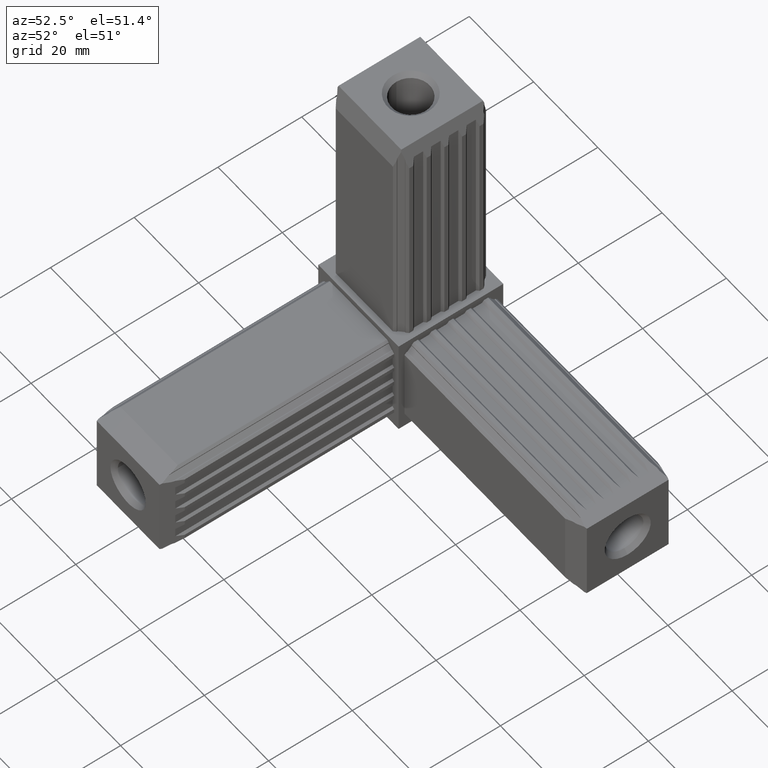
[diagram: clean part render]
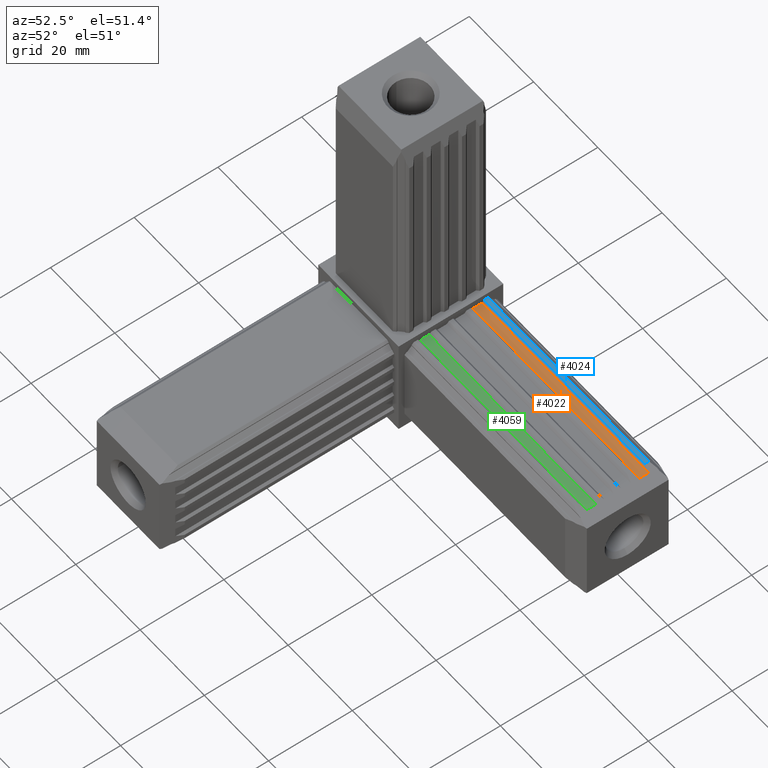
[diagram: same view with three faces highlighted in distinct colors, each labeled with its STEP entity id]
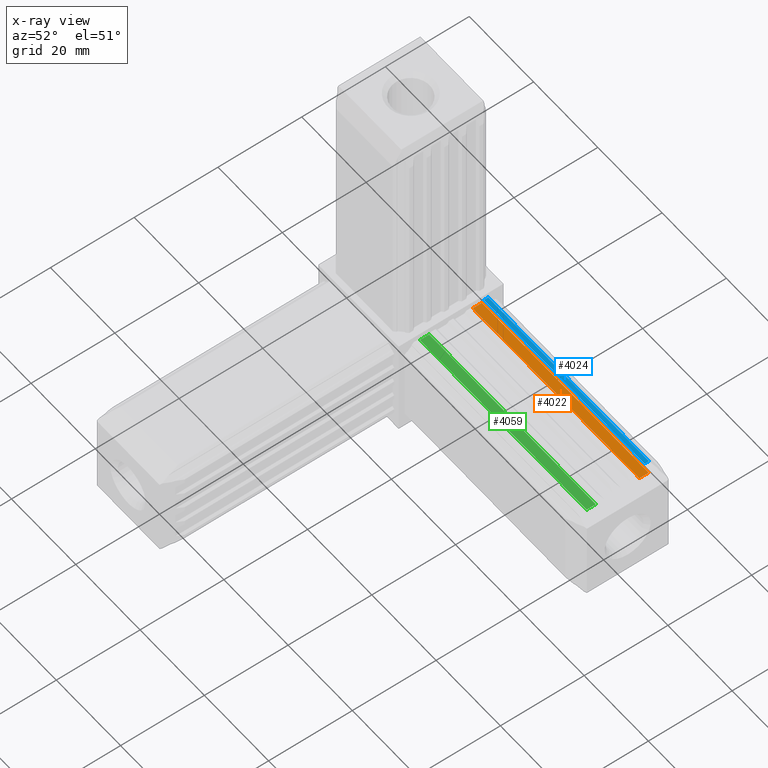
[diagram: x-ray of the same camera — body ghosted, the three highlighted faces saturated]
A machine part, auxiliary view with three faces highlighted in distinct colors.
The next image is the same camera in x-ray (body ghosted, the three faces saturated) — at least one of them is partly hidden behind the body in this view.
Their STEP definitions:

[orange] entity #4022 — the highlighted planar face has unit normal (0, 0, 1).
#103=PLANE('',#4265);
#311=FACE_OUTER_BOUND('',#517,.T.);
#517=EDGE_LOOP('',(#3364,#3365,#3366,#3367));
#900=LINE('',#5982,#1464);
#1009=LINE('',#6198,#1573);
#1011=LINE('',#6202,#1575);
#1012=LINE('',#6203,#1576);
#1464=VECTOR('',#4800,10.);
#1573=VECTOR('',#4987,10.);
#1575=VECTOR('',#4991,10.);
#1576=VECTOR('',#4992,10.);
#2021=VERTEX_POINT('',#5979);
#2022=VERTEX_POINT('',#5981);
#2090=VERTEX_POINT('',#6197);
#2091=VERTEX_POINT('',#6201);
#2461=EDGE_CURVE('',#2021,#2022,#900,.T.);
#2570=EDGE_CURVE('',#2090,#2022,#1009,.T.);
#2572=EDGE_CURVE('',#2091,#2021,#1011,.T.);
#2573=EDGE_CURVE('',#2090,#2091,#1012,.T.);
#3364=ORIENTED_EDGE('',*,*,#2461,.F.);
#3365=ORIENTED_EDGE('',*,*,#2572,.F.);
#3366=ORIENTED_EDGE('',*,*,#2573,.F.);
#3367=ORIENTED_EDGE('',*,*,#2570,.T.);
#4022=ADVANCED_FACE('',(#311),#103,.T.);
#4265=AXIS2_PLACEMENT_3D('',#6200,#4989,#4990);
#4800=DIRECTION('',(-5.65010282134088E-16,-1.,1.26161707343782E-15));
#4987=DIRECTION('',(1.,0.,0.));
#4989=DIRECTION('center_axis',(0.,1.26161707343782E-15,1.));
#4990=DIRECTION('ref_axis',(0.,-1.,1.26161707343782E-15));
#4991=DIRECTION('',(1.,0.,0.));
#4992=DIRECTION('',(0.,1.,-1.26161707343782E-15));
#5979=CARTESIAN_POINT('',(64.3660254037841,7.39999999999986,10.5999999999997));
#5981=CARTESIAN_POINT('',(64.3660254037841,5.2000000000001,10.5999999999997));
#5982=CARTESIAN_POINT('',(64.3660254037841,2.77499999999996,10.5999999999997));
#6197=CARTESIAN_POINT('',(12.5,5.2000000000001,10.5999999999997));
#6198=CARTESIAN_POINT('',(12.5,5.2000000000001,10.5999999999997));
#6200=CARTESIAN_POINT('Origin',(12.5,7.39999999999986,10.5999999999997));
#6201=CARTESIAN_POINT('',(12.5,7.39999999999986,10.5999999999997));
#6202=CARTESIAN_POINT('',(12.5,7.39999999999986,10.5999999999997));
#6203=CARTESIAN_POINT('',(12.5,-2.55000000000006,10.5999999999997));

[blue] entity #4024 — the highlighted planar face has unit normal (0, 0, 1).
#105=PLANE('',#4267);
#313=FACE_OUTER_BOUND('',#519,.T.);
#519=EDGE_LOOP('',(#3372,#3373,#3374,#3375));
#898=LINE('',#5978,#1462);
#1013=LINE('',#6206,#1577);
#1015=LINE('',#6210,#1579);
#1016=LINE('',#6211,#1580);
#1462=VECTOR('',#4798,10.);
#1577=VECTOR('',#4995,10.);
#1579=VECTOR('',#4999,10.);
#1580=VECTOR('',#5000,10.);
#2019=VERTEX_POINT('',#5975);
#2020=VERTEX_POINT('',#5977);
#2092=VERTEX_POINT('',#6205);
#2093=VERTEX_POINT('',#6209);
#2459=EDGE_CURVE('',#2019,#2020,#898,.T.);
#2574=EDGE_CURVE('',#2092,#2020,#1013,.T.);
#2576=EDGE_CURVE('',#2093,#2019,#1015,.T.);
#2577=EDGE_CURVE('',#2092,#2093,#1016,.T.);
#3372=ORIENTED_EDGE('',*,*,#2459,.F.);
#3373=ORIENTED_EDGE('',*,*,#2576,.F.);
#3374=ORIENTED_EDGE('',*,*,#2577,.F.);
#3375=ORIENTED_EDGE('',*,*,#2574,.T.);
#4024=ADVANCED_FACE('',(#313),#105,.T.);
#4267=AXIS2_PLACEMENT_3D('',#6208,#4997,#4998);
#4798=DIRECTION('',(-7.36073763564855E-28,-1.,1.1102230246249E-15));
#4995=DIRECTION('',(1.,0.,0.));
#4997=DIRECTION('center_axis',(0.,1.1102230246249E-15,1.));
#4998=DIRECTION('ref_axis',(0.,-1.,1.1102230246249E-15));
#4999=DIRECTION('',(1.,0.,0.));
#5000=DIRECTION('',(0.,1.,-1.1102230246249E-15));
#5975=CARTESIAN_POINT('',(62.4999999999997,8.90000000000009,11.0999999999997));
#5977=CARTESIAN_POINT('',(62.4999999999997,7.89999999999987,11.0999999999997));
#5978=CARTESIAN_POINT('',(62.4999999999997,3.52500000000009,11.0999999999997));
#6205=CARTESIAN_POINT('',(12.5,7.89999999999987,11.0999999999997));
#6206=CARTESIAN_POINT('',(12.5,7.89999999999987,11.0999999999997));
#6208=CARTESIAN_POINT('Origin',(12.5,8.90000000000009,11.0999999999997));
#6209=CARTESIAN_POINT('',(12.5,8.90000000000009,11.0999999999997));
#6210=CARTESIAN_POINT('',(12.5,8.90000000000009,11.0999999999997));
#6211=CARTESIAN_POINT('',(12.5,-1.79999999999995,11.0999999999997));

[green] entity #4059 — the highlighted planar face has unit normal (0, 0, 1).
#140=PLANE('',#4302);
#348=FACE_OUTER_BOUND('',#554,.T.);
#554=EDGE_LOOP('',(#3523,#3524,#3525,#3526));
#912=LINE('',#6006,#1476);
#1087=LINE('',#6354,#1651);
#1089=LINE('',#6358,#1653);
#1090=LINE('',#6359,#1654);
#1476=VECTOR('',#4812,10.);
#1651=VECTOR('',#5139,10.);
#1653=VECTOR('',#5143,10.);
#1654=VECTOR('',#5144,10.);
#2033=VERTEX_POINT('',#6003);
#2034=VERTEX_POINT('',#6005);
#2131=VERTEX_POINT('',#6353);
#2132=VERTEX_POINT('',#6357);
#2473=EDGE_CURVE('',#2033,#2034,#912,.T.);
#2648=EDGE_CURVE('',#2131,#2034,#1087,.T.);
#2650=EDGE_CURVE('',#2132,#2033,#1089,.T.);
#2651=EDGE_CURVE('',#2131,#2132,#1090,.T.);
#3523=ORIENTED_EDGE('',*,*,#2473,.F.);
#3524=ORIENTED_EDGE('',*,*,#2650,.F.);
#3525=ORIENTED_EDGE('',*,*,#2651,.F.);
#3526=ORIENTED_EDGE('',*,*,#2648,.T.);
#4059=ADVANCED_FACE('',(#348),#140,.T.);
#4302=AXIS2_PLACEMENT_3D('',#6356,#5141,#5142);
#4812=DIRECTION('',(-5.65010282134088E-16,-1.,1.26161707343782E-15));
#5139=DIRECTION('',(1.,0.,0.));
#5141=DIRECTION('center_axis',(0.,1.26161707343782E-15,1.));
#5142=DIRECTION('ref_axis',(0.,-1.,1.26161707343782E-15));
#5143=DIRECTION('',(1.,0.,0.));
#5144=DIRECTION('',(0.,1.,-1.26161707343782E-15));
#6003=CARTESIAN_POINT('',(64.3660254037841,-5.20000000000008,10.5999999999997));
#6005=CARTESIAN_POINT('',(64.3660254037841,-7.39999999999984,10.5999999999997));
#6006=CARTESIAN_POINT('',(64.3660254037841,-3.52500000000002,10.5999999999997));
#6353=CARTESIAN_POINT('',(12.5,-7.39999999999984,10.5999999999997));
#6354=CARTESIAN_POINT('',(12.5,-7.39999999999984,10.5999999999997));
#6356=CARTESIAN_POINT('Origin',(12.5,-5.20000000000008,10.5999999999997));
#6357=CARTESIAN_POINT('',(12.5,-5.20000000000008,10.5999999999997));
#6358=CARTESIAN_POINT('',(12.5,-5.20000000000008,10.5999999999997));
#6359=CARTESIAN_POINT('',(12.5,-8.85000000000004,10.5999999999997));